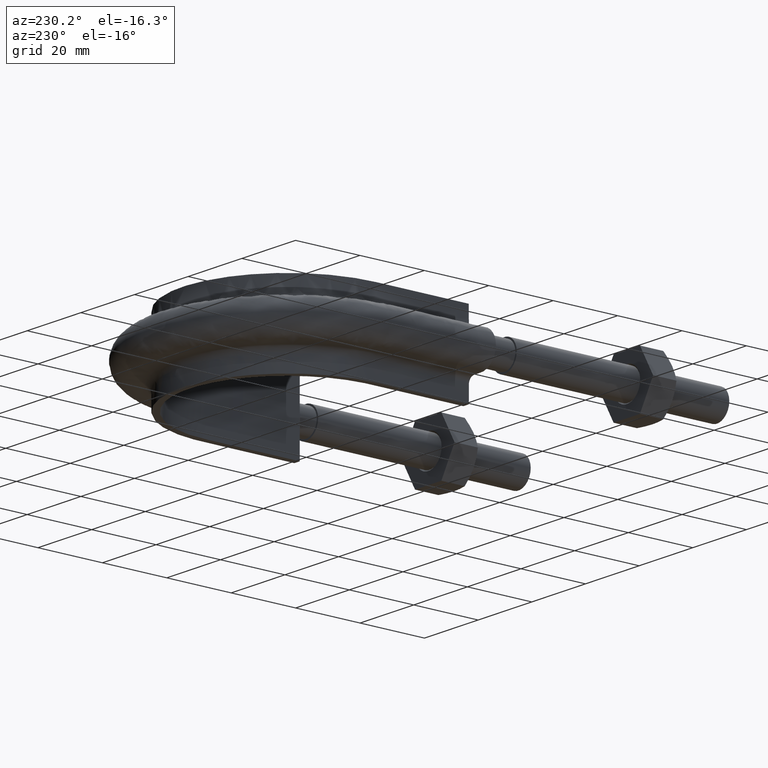
[diagram: clean part render]
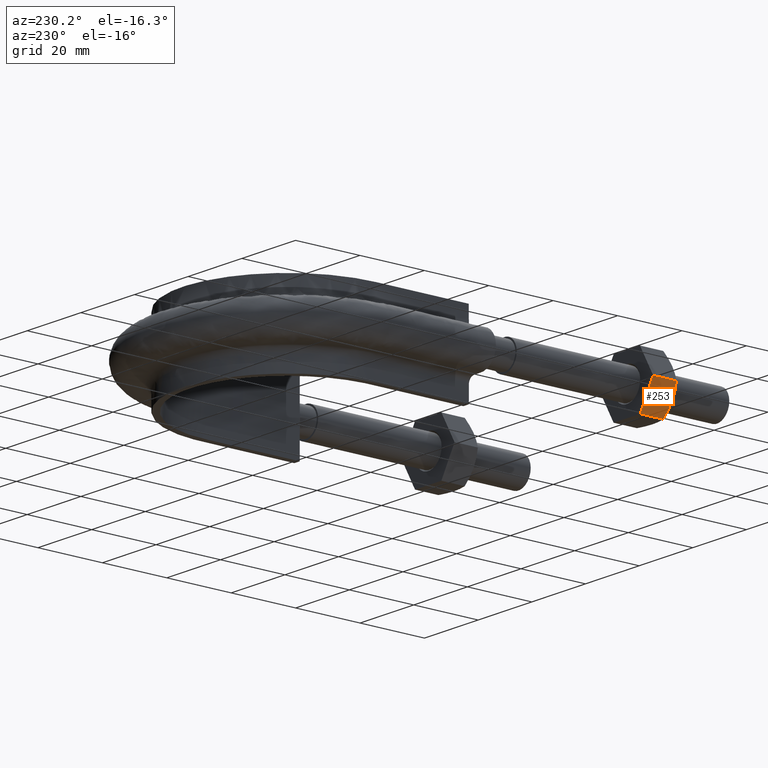
[diagram: same view with one face highlighted and labeled with its STEP entity id]
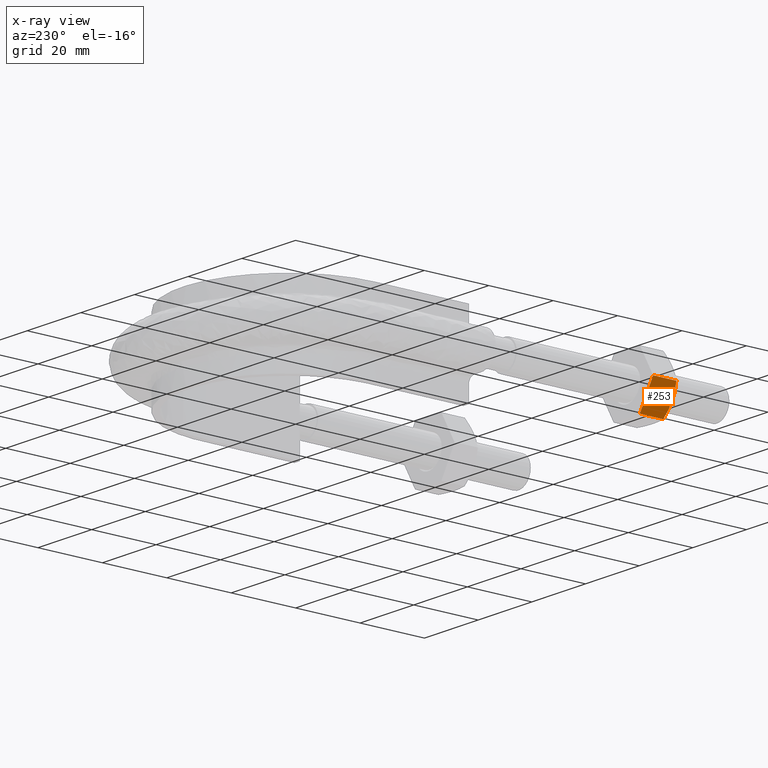
[diagram: x-ray of the same camera — body ghosted, the highlighted face saturated]
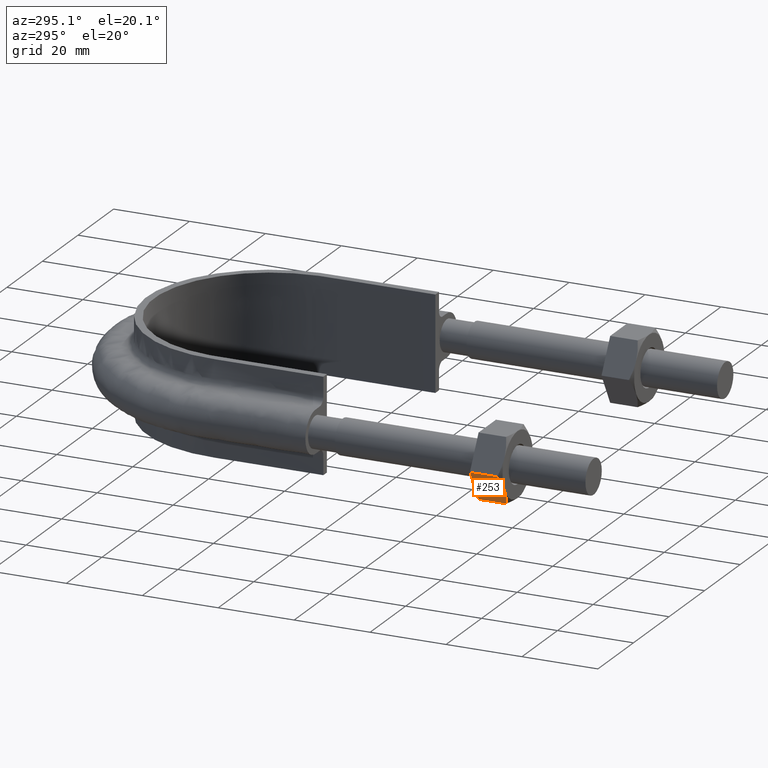
[diagram: same view with one face highlighted and labeled with its STEP entity id]
A machine part, auxiliary view. The second image highlights one B-rep face of the part: STEP entity #253.
The next image is the same camera in x-ray: the body ghosted, the highlighted face saturated — about 0% of this face is hidden behind the body in this view.
A second angle (auxiliary view) of the same face is appended — the face is thin or edge-on in the first view.
In plain terms, the highlighted planar face has unit normal (0.866, -0, 0.5).
Its self-contained STEP definition (entity closure, byte-faithful):
#253 = ADVANCED_FACE( '', ( #374 ), #375, .F. );
#374 = FACE_OUTER_BOUND( '', #1371, .T. );
#375 = PLANE( '', #1372 );
#1371 = EDGE_LOOP( '', ( #1685, #1686, #1687, #1688, #1689 ) );
#1372 = AXIS2_PLACEMENT_3D( '', #1690, #1691, #1692 );
#1685 = ORIENTED_EDGE( '', *, *, #2066, .F. );
#1686 = ORIENTED_EDGE( '', *, *, #2065, .F. );
#1687 = ORIENTED_EDGE( '', *, *, #2062, .F. );
#1688 = ORIENTED_EDGE( '', *, *, #2067, .F. );
#1689 = ORIENTED_EDGE( '', *, *, #2068, .F. );
#1690 = CARTESIAN_POINT( '', ( -41.9074772881085, 27.9999999999964, -8.50000000000193 ) );
#1691 = DIRECTION( '', ( 0.866025403784242, -1.81492883563574E-016, 0.500000000000340 ) );
#1692 = DIRECTION( '', ( 0.000000000000000, -1.00000000000000, -3.62985767126901E-016 ) );
#2062 = EDGE_CURVE( '', #2254, #2249, #2256, .F. );
#2065 = EDGE_CURVE( '', #2249, #2257, #2261, .T. );
#2066 = EDGE_CURVE( '', #2257, #2262, #2263, .T. );
#2067 = EDGE_CURVE( '', #2264, #2254, #2265, .T. );
#2068 = EDGE_CURVE( '', #2262, #2264, #2266, .T. );
#2249 = VERTEX_POINT( '', #2758 );
#2254 = VERTEX_POINT( '', #2764 );
#2256 = LINE( '', #2766, #2767 );
#2257 = VERTEX_POINT( '', #2768 );
#2261 = B_SPLINE_CURVE_WITH_KNOTS( '', 3, ( #2777, #2778, #2779, #2780, #2781, #2782 ), .UNSPECIFIED., .F., .F., ( 4, 2, 4 ), ( 2.60680173635598E-017, 0.00246745482903603, 0.00493490965807203 ), .UNSPECIFIED. );
#2262 = VERTEX_POINT( '', #2783 );
#2263 = B_SPLINE_CURVE_WITH_KNOTS( '', 3, ( #2784, #2785, #2786, #2787, #2788, #2789 ), .UNSPECIFIED., .F., .F., ( 4, 2, 4 ), ( 1.29814818157976E-017, 0.00246745482903605, 0.00493490965807208 ), .UNSPECIFIED. );
#2264 = VERTEX_POINT( '', #2790 );
#2265 = LINE( '', #2791, #2792 );
#2266 = LINE( '', #2793, #2794 );
#2758 = CARTESIAN_POINT( '', ( -46.7999656118191, 20.7505553499429, -0.0259616479052805 ) );
#2764 = CARTESIAN_POINT( '', ( -46.7999656118192, 27.9999999999964, -0.0259616479052786 ) );
#2766 = CARTESIAN_POINT( '', ( -46.7999656118192, 27.9999999999964, -0.0259616479052769 ) );
#2767 = VECTOR( '', #3145, 1000.00000000000 );
#2768 = CARTESIAN_POINT( '', ( -44.3612159321661, 19.9999999999964, -4.25000000000289 ) );
#2777 = CARTESIAN_POINT( '', ( -46.7999656118191, 20.7505553499429, -0.0259616479053051 ) );
#2778 = CARTESIAN_POINT( '', ( -46.4015017855060, 20.5215585493621, -0.716121240057237 ) );
#2779 = CARTESIAN_POINT( '', ( -45.9999375199986, 20.3328582843671, -1.41165095041963 ) );
#2780 = CARTESIAN_POINT( '', ( -45.1878690560094, 20.0716504305255, -2.81819478927195 ) );
#2781 = CARTESIAN_POINT( '', ( -44.7772989072617, 19.9999999999964, -3.52932314697349 ) );
#2782 = CARTESIAN_POINT( '', ( -44.3612159321661, 19.9999999999964, -4.25000000000288 ) );
#2783 = CARTESIAN_POINT( '', ( -41.9224662525130, 20.7505553499429, -8.47403835210053 ) );
#2784 = CARTESIAN_POINT( '', ( -44.3612159321661, 19.9999999999964, -4.25000000000288 ) );
#2785 = CARTESIAN_POINT( '', ( -43.9451329570705, 19.9999999999964, -4.97067685303229 ) );
#2786 = CARTESIAN_POINT( '', ( -43.5345628083227, 20.0716504305255, -5.68180521073387 ) );
#2787 = CARTESIAN_POINT( '', ( -42.7224943443336, 20.3328582843671, -7.08834904958620 ) );
#2788 = CARTESIAN_POINT( '', ( -42.3209300788261, 20.5215585493621, -7.78387875994859 ) );
#2789 = CARTESIAN_POINT( '', ( -41.9224662525130, 20.7505553499429, -8.47403835210053 ) );
#2790 = CARTESIAN_POINT( '', ( -41.9224662525130, 27.9999999999964, -8.47403835210053 ) );
#2791 = CARTESIAN_POINT( '', ( -49.2612159321694, 27.9999999999964, 4.23704895708266 ) );
#2792 = VECTOR( '', #3149, 1000.00000000000 );
#2793 = CARTESIAN_POINT( '', ( -41.9224662525130, 27.9999999999964, -8.47403835210053 ) );
#2794 = VECTOR( '', #3150, 1000.00000000000 );
#3145 = DIRECTION( '', ( 2.44921270764475E-016, 1.00000000000000, -6.12303176911192E-017 ) );
#3149 = DIRECTION( '', ( -0.500000000000340, 1.75487645984610E-016, 0.866025403784242 ) );
#3150 = DIRECTION( '', ( 2.44921270764475E-016, 1.00000000000000, -6.12303176911192E-017 ) );